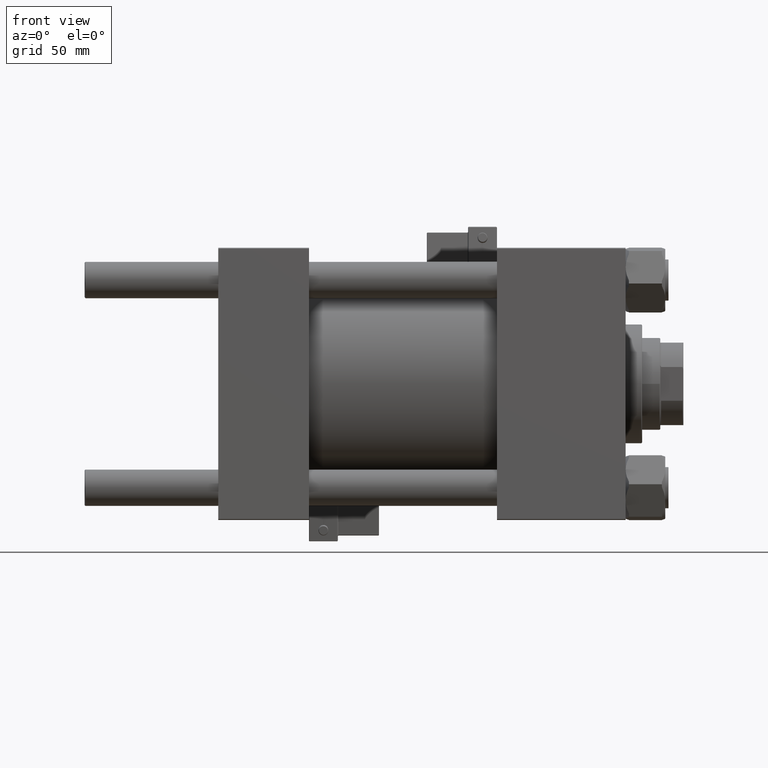
[diagram: clean part render]
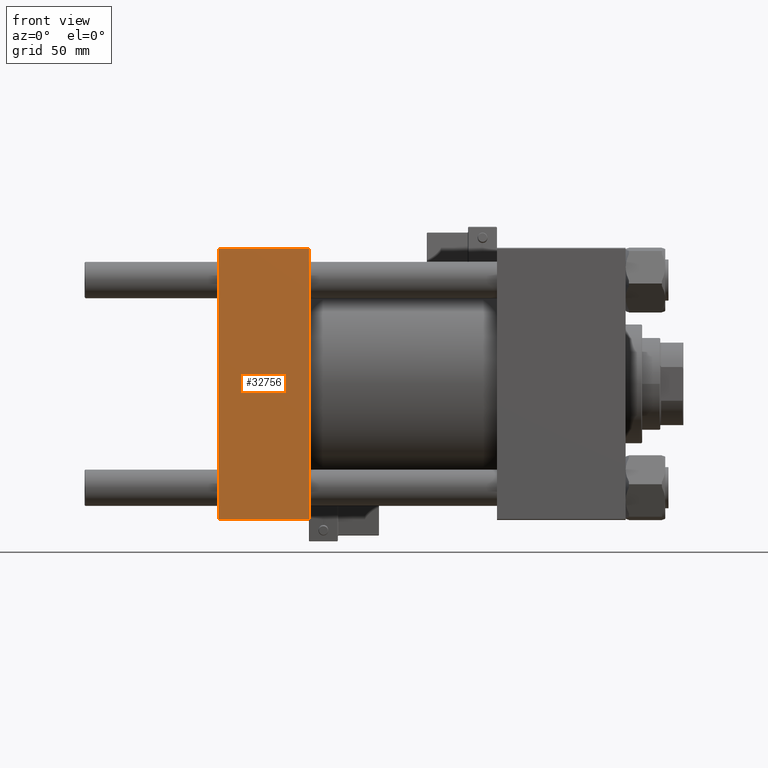
[diagram: same view with one face highlighted and labeled with its STEP entity id]
A machine part, front view. The second image highlights one B-rep face of the part: STEP entity #32756.
In plain terms, the highlighted planar face has unit normal (0, 1, -0).
Its self-contained STEP definition (entity closure, byte-faithful):
#22 = CARTESIAN_POINT ( 'NONE',  ( 55.00000000000000000, -82.49999999999997158, 82.00000000000001421 ) ) ;
#402 = LINE ( 'NONE', #4384, #19785 ) ;
#1485 = DIRECTION ( 'NONE',  ( 0.000000000000000000, 1.000000000000000000, -1.682156097916903588E-16 ) ) ;
#1812 = VERTEX_POINT ( 'NONE', #3950 ) ;
#2585 = CARTESIAN_POINT ( 'NONE',  ( 55.00000000000000000, -82.49999999999997158, 82.00000000000001421 ) ) ;
#3950 = CARTESIAN_POINT ( 'NONE',  ( 0.000000000000000000, -82.50000000000000000, -81.99999999999998579 ) ) ;
#4124 = DIRECTION ( 'NONE',  ( 1.000000000000000000, 0.000000000000000000, 0.000000000000000000 ) ) ;
#4312 = DIRECTION ( 'NONE',  ( 0.000000000000000000, -1.682156097916903588E-16, -1.000000000000000000 ) ) ;
#4384 = CARTESIAN_POINT ( 'NONE',  ( 55.00000000000000000, -82.50000000000000000, -81.99999999999998579 ) ) ;
#4918 = LINE ( 'NONE', #45679, #7618 ) ;
#5861 = EDGE_CURVE ( 'NONE', #50139, #9689, #36274, .T. ) ;
#7618 = VECTOR ( 'NONE', #25699, 1000.000000000000000 ) ;
#9689 = VERTEX_POINT ( 'NONE', #50830 ) ;
#9742 = FACE_OUTER_BOUND ( 'NONE', #39716, .T. ) ;
#11216 = LINE ( 'NONE', #22, #20881 ) ;
#13162 = ORIENTED_EDGE ( 'NONE', *, *, #5861, .F. ) ;
#18507 = CARTESIAN_POINT ( 'NONE',  ( 55.00000000000000000, -82.49999999999997158, 82.50000000000001421 ) ) ;
#19785 = VECTOR ( 'NONE', #4124, 1000.000000000000000 ) ;
#20285 = AXIS2_PLACEMENT_3D ( 'NONE', #18507, #1485, #38232 ) ;
#20881 = VECTOR ( 'NONE', #47973, 1000.000000000000000 ) ;
#21938 = EDGE_CURVE ( 'NONE', #50139, #34004, #11216, .T. ) ;
#24041 = CARTESIAN_POINT ( 'NONE',  ( 55.00000000000000000, -82.49999999999997158, 82.50000000000001421 ) ) ;
#25699 = DIRECTION ( 'NONE',  ( 0.000000000000000000, -1.682156097916903588E-16, -1.000000000000000000 ) ) ;
#32349 = ORIENTED_EDGE ( 'NONE', *, *, #21938, .T. ) ;
#32756 = ADVANCED_FACE ( 'NONE', ( #9742 ), #37974, .F. ) ;
#34004 = VERTEX_POINT ( 'NONE', #42900 ) ;
#34086 = ORIENTED_EDGE ( 'NONE', *, *, #38291, .T. ) ;
#36274 = LINE ( 'NONE', #24041, #40010 ) ;
#37974 = PLANE ( 'NONE',  #20285 ) ;
#38232 = DIRECTION ( 'NONE',  ( 0.000000000000000000, 1.682156097916903588E-16, 1.000000000000000000 ) ) ;
#38291 = EDGE_CURVE ( 'NONE', #34004, #1812, #4918, .T. ) ;
#38452 = ORIENTED_EDGE ( 'NONE', *, *, #48380, .T. ) ;
#39716 = EDGE_LOOP ( 'NONE', ( #34086, #38452, #13162, #32349 ) ) ;
#40010 = VECTOR ( 'NONE', #4312, 1000.000000000000000 ) ;
#42900 = CARTESIAN_POINT ( 'NONE',  ( 0.000000000000000000, -82.49999999999997158, 82.00000000000001421 ) ) ;
#45679 = CARTESIAN_POINT ( 'NONE',  ( 0.000000000000000000, -82.49999999999997158, 82.50000000000001421 ) ) ;
#47973 = DIRECTION ( 'NONE',  ( -1.000000000000000000, 0.000000000000000000, 0.000000000000000000 ) ) ;
#48380 = EDGE_CURVE ( 'NONE', #1812, #9689, #402, .T. ) ;
#50139 = VERTEX_POINT ( 'NONE', #2585 ) ;
#50830 = CARTESIAN_POINT ( 'NONE',  ( 55.00000000000000000, -82.50000000000000000, -81.99999999999998579 ) ) ;